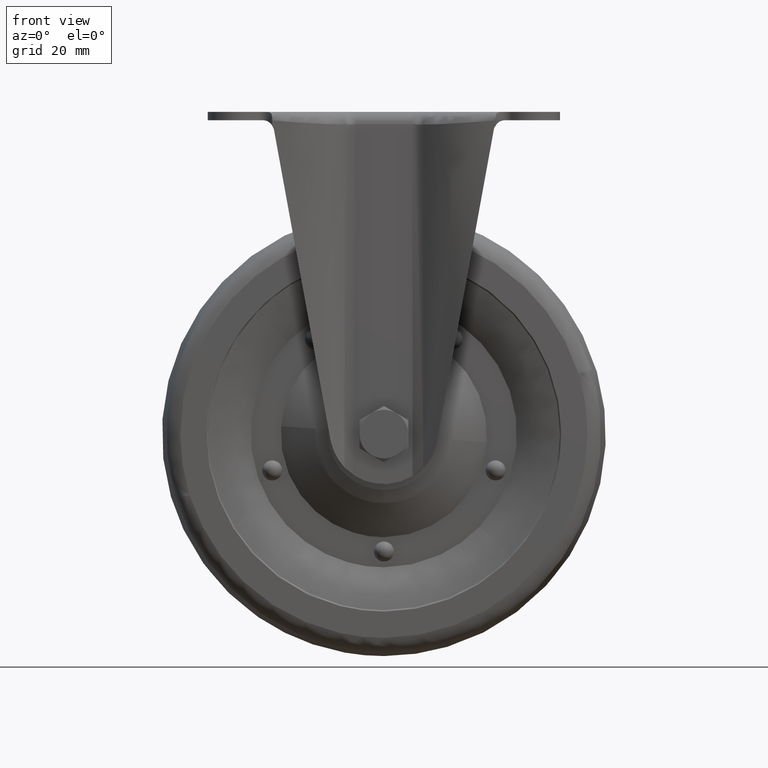
[diagram: clean part render]
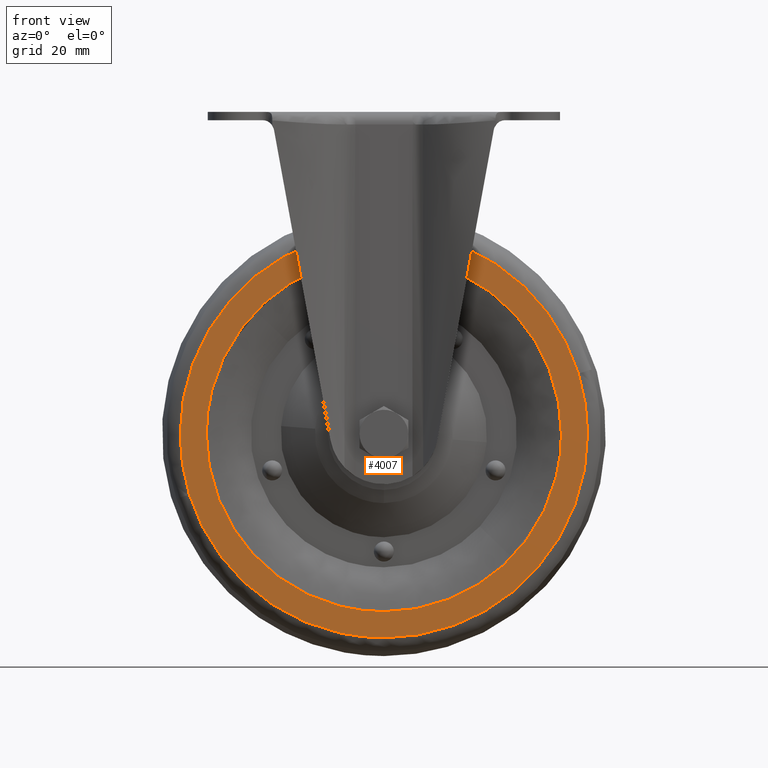
[diagram: same view with one face highlighted and labeled with its STEP entity id]
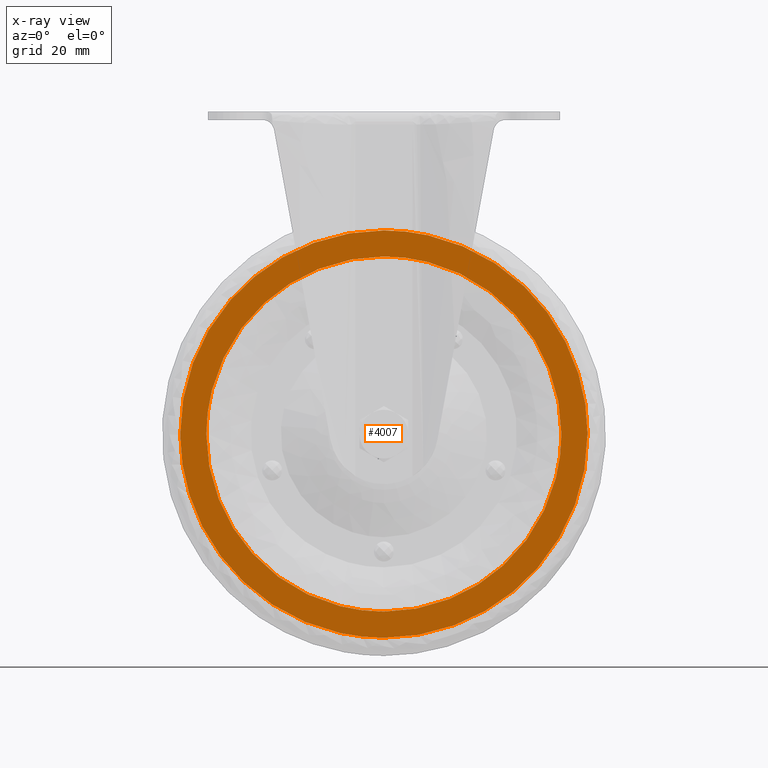
[diagram: x-ray of the same camera — body ghosted, the highlighted face saturated]
A machine part, front view. The second image highlights one B-rep face of the part: STEP entity #4007.
The next image is the same camera in x-ray: the body ghosted, the highlighted face saturated — about 0% of this face is hidden behind the body in this view.
In plain terms, the highlighted face is a freeform B-spline surface patch.
Its self-contained STEP definition (entity closure, byte-faithful):
#3804=CARTESIAN_POINT('',(67.908224801424808,-14.0,-91.374944505515955));
#3805=VERTEX_POINT('',#3804);
#3819=CARTESIAN_POINT('',(0.0,-14.0,-183.618176042508400));
#3820=VERTEX_POINT('',#3819);
#3821=CARTESIAN_POINT('',(0.0,-14.0,-183.618176042508400));
#3822=CARTESIAN_POINT('',(71.118176046740530,-13.999999999999996,-183.618176041191840));
#3823=CARTESIAN_POINT('',(71.118176052489289,-14.0,-112.499999996895100));
#3824=CARTESIAN_POINT('',(71.118176053362802,-14.000000000000004,-101.693596275355530));
#3825=CARTESIAN_POINT('',(67.908224801424808,-14.0,-91.374944505515955));
#3833=(BOUNDED_CURVE()B_SPLINE_CURVE(2,(#3821,#3822,#3823,#3824,#3825),.UNSPECIFIED.,.F.,.U.)B_SPLINE_CURVE_WITH_KNOTS((3,2,3),(0.0,0.250000000000000,0.300541362319597),.UNSPECIFIED.)CURVE()GEOMETRIC_REPRESENTATION_ITEM()RATIONAL_B_SPLINE_CURVE((1.0,0.707106781186547,1.0,0.940787110827985,0.905515822341034))REPRESENTATION_ITEM(''));
#3834=EDGE_CURVE('',#3820,#3805,#3833,.T.);
#3836=CARTESIAN_POINT('',(-67.908224801424808,-14.0,-133.625055494484000));
#3837=VERTEX_POINT('',#3836);
#3838=CARTESIAN_POINT('',(-67.908224801424808,-14.0,-133.625055494483970));
#3839=CARTESIAN_POINT('',(-52.356243440203450,-14.000000000000005,-183.618176044296750));
#3840=CARTESIAN_POINT('',(0.0,-14.0,-183.618176042508400));
#3848=(BOUNDED_CURVE()B_SPLINE_CURVE(2,(#3838,#3839,#3840),.UNSPECIFIED.,.F.,.U.)B_SPLINE_CURVE_WITH_KNOTS((3,3),(0.800541362319597,1.0),.UNSPECIFIED.)CURVE()GEOMETRIC_REPRESENTATION_ITEM()RATIONAL_B_SPLINE_CURVE((0.905515822341034,0.766319670358563,1.0))REPRESENTATION_ITEM(''));
#3849=EDGE_CURVE('',#3837,#3820,#3848,.T.);
#3899=CARTESIAN_POINT('',(0.0,-14.0,-41.381823957491598));
#3900=VERTEX_POINT('',#3899);
#3901=CARTESIAN_POINT('',(0.0,-14.0,-41.381823957491598));
#3902=CARTESIAN_POINT('',(-71.118176046740530,-13.999999999999996,-41.381823958808134));
#3903=CARTESIAN_POINT('',(-71.118176052489289,-14.0,-112.500000003104900));
#3904=CARTESIAN_POINT('',(-71.118176053362802,-14.000000000000004,-123.306403724644430));
#3905=CARTESIAN_POINT('',(-67.908224801424808,-14.0,-133.625055494483970));
#3913=(BOUNDED_CURVE()B_SPLINE_CURVE(2,(#3901,#3902,#3903,#3904,#3905),.UNSPECIFIED.,.F.,.U.)B_SPLINE_CURVE_WITH_KNOTS((3,2,3),(0.500000000000000,0.750000000000000,0.800541362319597),.UNSPECIFIED.)CURVE()GEOMETRIC_REPRESENTATION_ITEM()RATIONAL_B_SPLINE_CURVE((1.0,0.707106781186547,1.0,0.940787110827985,0.905515822341034))REPRESENTATION_ITEM(''));
#3914=EDGE_CURVE('',#3900,#3837,#3913,.T.);
#3916=CARTESIAN_POINT('',(67.908224801424808,-14.0,-91.374944505515955));
#3917=CARTESIAN_POINT('',(52.356243440203450,-14.000000000000005,-41.381823955703254));
#3918=CARTESIAN_POINT('',(0.0,-14.0,-41.381823957491598));
#3926=(BOUNDED_CURVE()B_SPLINE_CURVE(2,(#3916,#3917,#3918),.UNSPECIFIED.,.F.,.U.)B_SPLINE_CURVE_WITH_KNOTS((3,3),(0.300541362319597,0.500000000000000),.UNSPECIFIED.)CURVE()GEOMETRIC_REPRESENTATION_ITEM()RATIONAL_B_SPLINE_CURVE((0.905515822341034,0.766319670358563,1.0))REPRESENTATION_ITEM(''));
#3927=EDGE_CURVE('',#3805,#3900,#3926,.T.);
#3934=CARTESIAN_POINT('',(-78.218594807310467,-14.0,-190.722881553473400));
#3935=CARTESIAN_POINT('',(-78.218594807310467,-14.0,-34.277114631450416));
#3936=CARTESIAN_POINT('',(78.218589721635567,-14.0,-190.722881553473400));
#3937=CARTESIAN_POINT('',(78.218589721635567,-14.0,-34.277114631450416));
#3938=B_SPLINE_SURFACE_WITH_KNOTS('',1,1,((#3934,#3936),(#3935,#3937)),.UNSPECIFIED.,.F.,.F.,.U.,(2,2),(2,2),(0.0,156.445766922023010),(0.0,156.437184528946010),.UNSPECIFIED.);
#3939=ORIENTED_EDGE('',*,*,#3834,.T.);
#3940=ORIENTED_EDGE('',*,*,#3927,.T.);
#3941=ORIENTED_EDGE('',*,*,#3914,.T.);
#3942=ORIENTED_EDGE('',*,*,#3849,.T.);
#3943=EDGE_LOOP('',(#3939,#3940,#3941,#3942));
#3944=FACE_OUTER_BOUND('',#3943,.T.);
#3945=CARTESIAN_POINT('',(0.0,-14.0,-50.500000000000000));
#3946=VERTEX_POINT('',#3945);
#3947=CARTESIAN_POINT('',(-61.999999987765740,-14.0,-112.500000000000000));
#3948=VERTEX_POINT('',#3947);
#3949=CARTESIAN_POINT('',(0.0,-14.0,-50.500000000000000));
#3950=CARTESIAN_POINT('',(-61.999999993882874,-13.999999999999998,-50.499999999999993));
#3951=CARTESIAN_POINT('',(-61.999999987765740,-14.0,-112.500000000000000));
#3959=(BOUNDED_CURVE()B_SPLINE_CURVE(2,(#3949,#3950,#3951),.UNSPECIFIED.,.F.,.U.)B_SPLINE_CURVE_WITH_KNOTS((3,3),(0.500000000000000,0.750000000000000),.UNSPECIFIED.)CURVE()GEOMETRIC_REPRESENTATION_ITEM()RATIONAL_B_SPLINE_CURVE((1.0,0.707106781186548,1.0))REPRESENTATION_ITEM(''));
#3960=EDGE_CURVE('',#3946,#3948,#3959,.T.);
#3961=ORIENTED_EDGE('',*,*,#3960,.F.);
#3962=CARTESIAN_POINT('',(61.999999987765740,-14.0,-112.500000000000000));
#3963=VERTEX_POINT('',#3962);
#3964=CARTESIAN_POINT('',(61.999999987765740,-14.0,-112.500000000000000));
#3965=CARTESIAN_POINT('',(61.999999993882874,-13.999999999999998,-50.499999999999993));
#3966=CARTESIAN_POINT('',(0.0,-14.0,-50.500000000000000));
#3974=(BOUNDED_CURVE()B_SPLINE_CURVE(2,(#3964,#3965,#3966),.UNSPECIFIED.,.F.,.U.)B_SPLINE_CURVE_WITH_KNOTS((3,3),(0.250000000000000,0.500000000000000),.UNSPECIFIED.)CURVE()GEOMETRIC_REPRESENTATION_ITEM()RATIONAL_B_SPLINE_CURVE((1.0,0.707106781186548,1.0))REPRESENTATION_ITEM(''));
#3975=EDGE_CURVE('',#3963,#3946,#3974,.T.);
#3976=ORIENTED_EDGE('',*,*,#3975,.F.);
#3977=CARTESIAN_POINT('',(0.0,-14.0,-174.500000000000000));
#3978=VERTEX_POINT('',#3977);
#3979=CARTESIAN_POINT('',(0.0,-14.0,-174.500000000000000));
#3980=CARTESIAN_POINT('',(61.999999993882874,-13.999999999999998,-174.499999999999940));
#3981=CARTESIAN_POINT('',(61.999999987765740,-14.0,-112.500000000000000));
#3989=(BOUNDED_CURVE()B_SPLINE_CURVE(2,(#3979,#3980,#3981),.UNSPECIFIED.,.F.,.U.)B_SPLINE_CURVE_WITH_KNOTS((3,3),(0.0,0.250000000000000),.UNSPECIFIED.)CURVE()GEOMETRIC_REPRESENTATION_ITEM()RATIONAL_B_SPLINE_CURVE((1.0,0.707106781186548,1.0))REPRESENTATION_ITEM(''));
#3990=EDGE_CURVE('',#3978,#3963,#3989,.T.);
#3991=ORIENTED_EDGE('',*,*,#3990,.F.);
#3992=CARTESIAN_POINT('',(-61.999999987765740,-14.0,-112.500000000000000));
#3993=CARTESIAN_POINT('',(-61.999999993882874,-13.999999999999998,-174.499999999999940));
#3994=CARTESIAN_POINT('',(0.0,-14.0,-174.500000000000000));
#4002=(BOUNDED_CURVE()B_SPLINE_CURVE(2,(#3992,#3993,#3994),.UNSPECIFIED.,.F.,.U.)B_SPLINE_CURVE_WITH_KNOTS((3,3),(0.750000000000000,1.0),.UNSPECIFIED.)CURVE()GEOMETRIC_REPRESENTATION_ITEM()RATIONAL_B_SPLINE_CURVE((1.0,0.707106781186548,1.0))REPRESENTATION_ITEM(''));
#4003=EDGE_CURVE('',#3948,#3978,#4002,.T.);
#4004=ORIENTED_EDGE('',*,*,#4003,.F.);
#4005=EDGE_LOOP('',(#3961,#3976,#3991,#4004));
#4006=FACE_BOUND('',#4005,.T.);
#4007=ADVANCED_FACE('',(#3944,#4006),#3938,.F.);